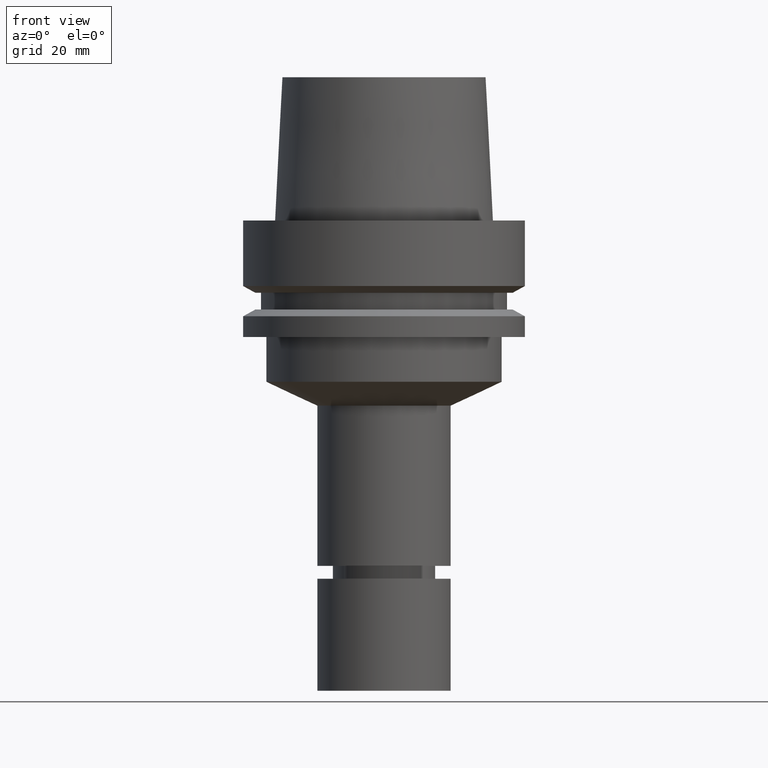
[diagram: clean part render]
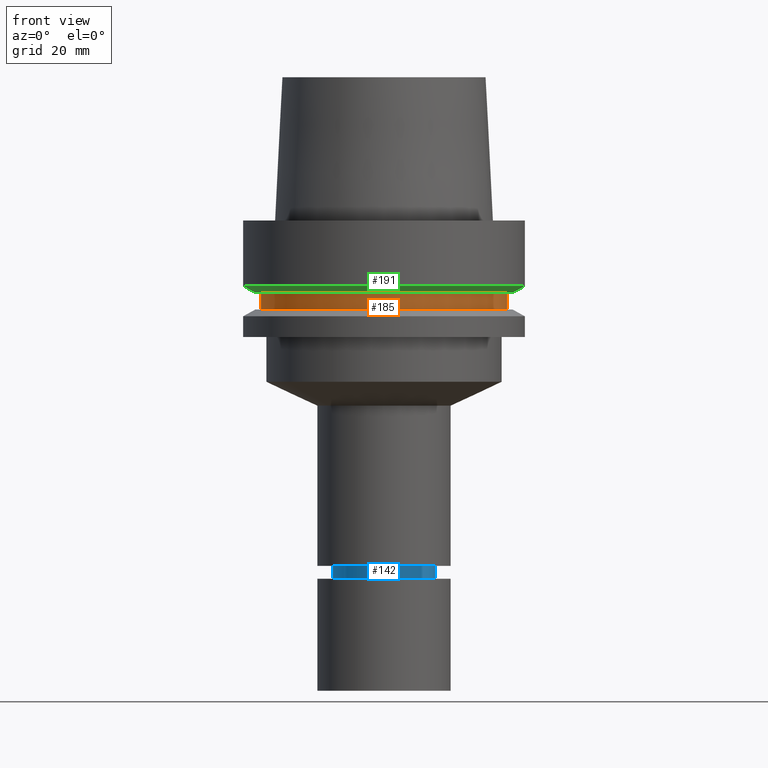
[diagram: same view with three faces highlighted in distinct colors, each labeled with its STEP entity id]
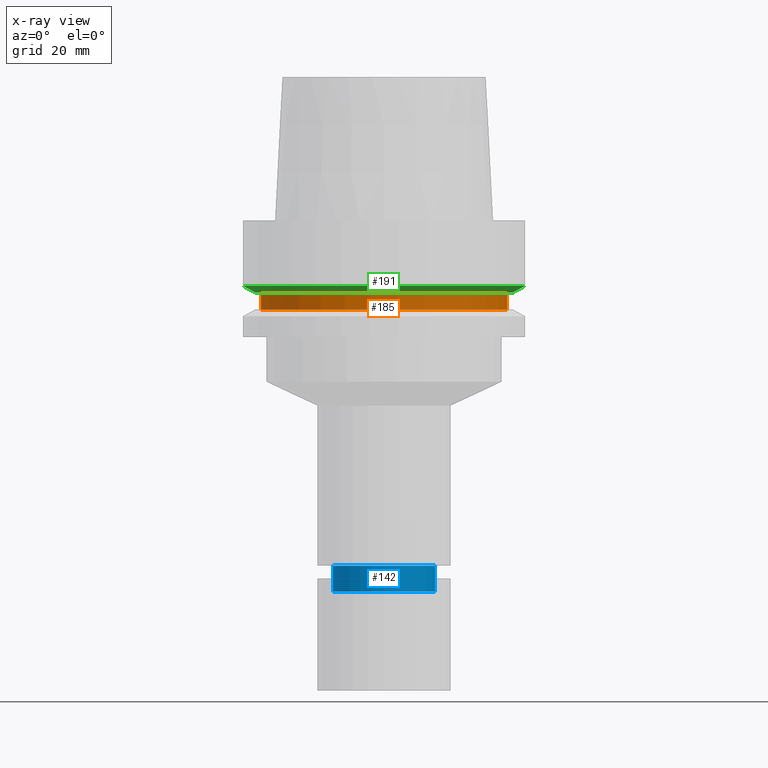
[diagram: x-ray of the same camera — body ghosted, the three highlighted faces saturated]
A machine part, front view with three faces highlighted in distinct colors.
The next image is the same camera in x-ray (body ghosted, the three faces saturated) — at least one of them is partly hidden behind the body in this view.
Their STEP definitions:

[orange] entity #185 — the highlighted cylindrical surface (bore or boss wall) has radius 27.5 mm, axis along (-0, -0, 1).
#120=EDGE_CURVE('Unnamed[1]',#274,#274,#275,.T.);
#169=EDGE_CURVE('Unnamed[1]',#351,#351,#352,.T.);
#185=ADVANCED_FACE('Unnamed[1]',(#376,#377),#378,.T.);
#274=VERTEX_POINT('',#481);
#275=CIRCLE('',#482,27.5);
#351=VERTEX_POINT('',#577);
#352=CIRCLE('',#578,27.4999999999989);
#376=FACE_BOUND('',#608,.T.);
#377=FACE_BOUND('',#609,.T.);
#378=CYLINDRICAL_SURFACE('',#610,27.4999999999994);
#481=CARTESIAN_POINT('',(9.87371481812537E-016,27.5,-16.1249999999997));
#482=AXIS2_PLACEMENT_3D('',#690,#691,#692);
#577=CARTESIAN_POINT('',(1.21699275665276E-015,27.4999999999989,-19.8750000000013));
#578=AXIS2_PLACEMENT_3D('',#778,#779,#780);
#608=EDGE_LOOP('',(#806));
#609=EDGE_LOOP('',(#807));
#610=AXIS2_PLACEMENT_3D('',#808,#809,#810);
#690=CARTESIAN_POINT('',(9.87371481812538E-016,1.97474296362508E-015,-16.1249999999997));
#691=DIRECTION('',(-6.12323399573677E-017,-1.22464679914735E-016,1.0));
#692=DIRECTION('',(-1.23259516440783E-032,1.0,1.22464679914735E-016));
#778=CARTESIAN_POINT('',(1.21699275665276E-015,2.43398551330552E-015,-19.8750000000013));
#779=DIRECTION('',(-6.12323399573677E-017,-1.22464679914735E-016,1.0));
#780=DIRECTION('',(-1.23259516440783E-032,1.0,1.22464679914735E-016));
#806=ORIENTED_EDGE('',*,*,#120,.F.);
#807=ORIENTED_EDGE('',*,*,#169,.T.);
#808=CARTESIAN_POINT('',(1.10218211923265E-015,2.2043642384653E-015,-18.0000000000005));
#809=DIRECTION('',(-6.12323399573677E-017,-1.22464679914735E-016,1.0));
#810=DIRECTION('',(-1.23259516440783E-032,1.0,1.22464679914735E-016));

[blue] entity #142 — the highlighted cylindrical surface (bore or boss wall) has radius 11.5 mm, axis along (-0, -0, 1).
#86=EDGE_CURVE('Unnamed[1]',#226,#226,#227,.T.);
#142=ADVANCED_FACE('Unnamed[1]',(#308,#309),#310,.T.);
#161=EDGE_CURVE('Unnamed[1]',#339,#339,#340,.T.);
#226=VERTEX_POINT('',#421);
#227=CIRCLE('',#422,11.4999999999907);
#308=FACE_BOUND('',#523,.T.);
#309=FACE_BOUND('',#524,.T.);
#310=CYLINDRICAL_SURFACE('',#525,11.4999999999964);
#339=VERTEX_POINT('',#562);
#340=CIRCLE('',#563,11.5000000000021);
#421=CARTESIAN_POINT('',(4.72101341071305E-015,11.4999999999907,-77.1000000000001));
#422=AXIS2_PLACEMENT_3D('',#642,#643,#644);
#523=EDGE_LOOP('',(#729));
#524=EDGE_LOOP('',(#730));
#525=AXIS2_PLACEMENT_3D('',#731,#732,#733);
#562=CARTESIAN_POINT('',(5.07685443047439E-015,11.5000000000021,-82.9113248654077));
#563=AXIS2_PLACEMENT_3D('',#764,#765,#766);
#642=CARTESIAN_POINT('',(4.72101341071305E-015,9.4420268214261E-015,-77.1000000000001));
#643=DIRECTION('',(-6.12323399573677E-017,-1.22464679914735E-016,1.0));
#644=DIRECTION('',(-1.23259516440783E-032,1.0,1.22464679914735E-016));
#729=ORIENTED_EDGE('',*,*,#86,.F.);
#730=ORIENTED_EDGE('',*,*,#161,.T.);
#731=CARTESIAN_POINT('',(4.89893392059372E-015,9.79786784118744E-015,-80.0056624327039));
#732=DIRECTION('',(-6.12323399573676E-017,-1.22464679914735E-016,1.0));
#733=DIRECTION('',(-1.23259516440783E-032,1.0,1.22464679914735E-016));
#764=CARTESIAN_POINT('',(5.07685443047439E-015,1.01537088609488E-014,-82.9113248654077));
#765=DIRECTION('',(-6.12323399573676E-017,-1.22464679914735E-016,1.0));
#766=DIRECTION('',(-1.23259516440783E-032,1.0,1.22464679914735E-016));

[green] entity #191 — the highlighted conical surface has half-angle 60 deg.
#108=EDGE_CURVE('Unnamed[1]',#258,#258,#259,.T.);
#122=EDGE_CURVE('Unnamed[1]',#277,#277,#278,.T.);
#191=ADVANCED_FACE('Unnamed[1]',(#386,#387),#388,.T.);
#258=VERTEX_POINT('',#461);
#259=CIRCLE('',#462,28.8975952641919);
#277=VERTEX_POINT('',#485);
#278=CIRCLE('',#486,31.5);
#386=FACE_BOUND('',#620,.T.);
#387=FACE_BOUND('',#621,.T.);
#388=CONICAL_SURFACE('',#622,30.1987976320959,1.04719755119657);
#461=CARTESIAN_POINT('',(9.87371481812551E-016,28.8975952641919,-16.125));
#462=AXIS2_PLACEMENT_3D('',#675,#676,#677);
#485=CARTESIAN_POINT('',(8.95369947681261E-016,31.5,-14.6225009252407));
#486=AXIS2_PLACEMENT_3D('',#693,#694,#695);
#620=EDGE_LOOP('',(#818));
#621=EDGE_LOOP('',(#819));
#622=AXIS2_PLACEMENT_3D('',#820,#821,#822);
#675=CARTESIAN_POINT('',(9.87371481812552E-016,1.9747429636251E-015,-16.125));
#676=DIRECTION('',(-6.12323399573677E-017,-1.22464679914735E-016,1.0));
#677=DIRECTION('',(-1.23259516440783E-032,1.0,1.22464679914735E-016));
#693=CARTESIAN_POINT('',(8.95369947681262E-016,1.79073989536252E-015,-14.6225009252407));
#694=DIRECTION('',(-6.12323399573677E-017,-1.22464679914735E-016,1.0));
#695=DIRECTION('',(-1.23259516440783E-032,1.0,1.22464679914735E-016));
#818=ORIENTED_EDGE('',*,*,#122,.F.);
#819=ORIENTED_EDGE('',*,*,#108,.T.);
#820=CARTESIAN_POINT('',(9.41370714746907E-016,1.88274142949381E-015,-15.3737504626203));
#821=DIRECTION('',(-6.12323399573677E-017,-1.22464679914735E-016,1.0));
#822=DIRECTION('',(-1.23259516440783E-032,1.0,1.22464679914735E-016));